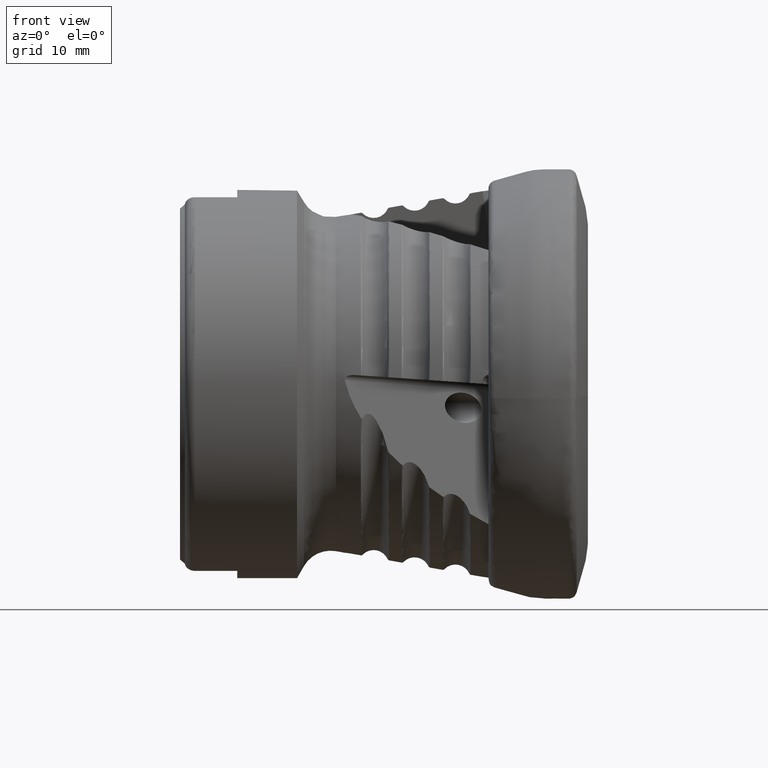
[diagram: clean part render]
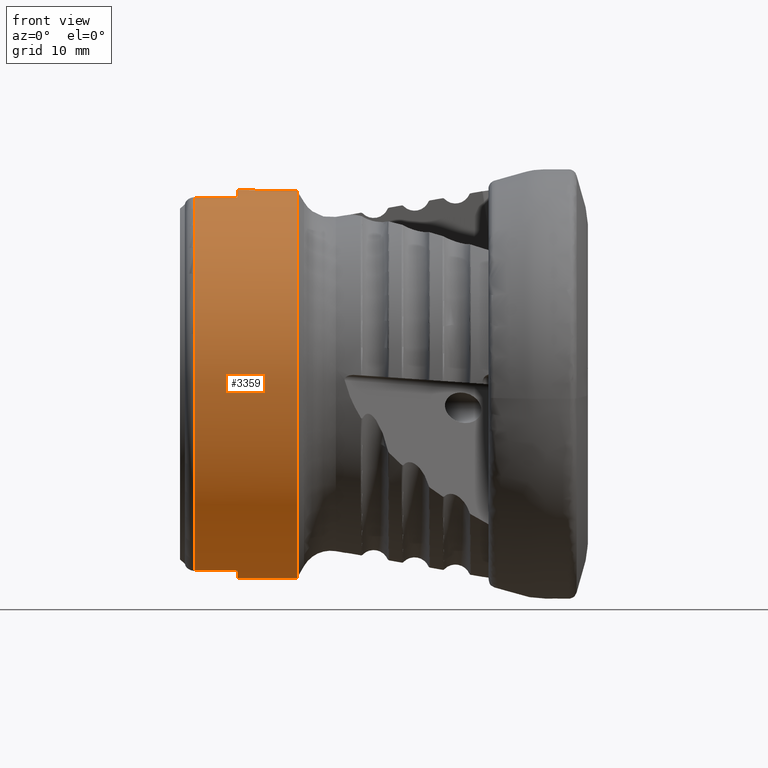
[diagram: same view with one face highlighted and labeled with its STEP entity id]
A machine part, front view. The second image highlights one B-rep face of the part: STEP entity #3359.
In plain terms, the highlighted cylindrical surface (bore or boss wall) has radius 19 mm, axis along (1, -0, -0).
Its self-contained STEP definition (entity closure, byte-faithful):
#63 = VERTEX_POINT ( 'NONE', #7376 ) ;
#117 = EDGE_CURVE ( 'NONE', #3732, #5820, #3163, .T. ) ;
#226 = EDGE_CURVE ( 'NONE', #1237, #1237, #4421, .T. ) ;
#267 = CARTESIAN_POINT ( 'NONE',  ( -37.54999999999999000, 0.0000000000000000000, 0.0000000000000000000 ) ) ;
#376 = LINE ( 'NONE', #5171, #3516 ) ;
#470 = AXIS2_PLACEMENT_3D ( 'NONE', #6910, #3165, #3791 ) ;
#570 = DIRECTION ( 'NONE',  ( -1.000000000000000000, -0.0000000000000000000, -0.0000000000000000000 ) ) ;
#673 = CIRCLE ( 'NONE', #7868, 18.99999999999999300 ) ;
#901 = DIRECTION ( 'NONE',  ( 0.0000000000000000000, 0.0000000000000000000, -1.000000000000000000 ) ) ;
#960 = CYLINDRICAL_SURFACE ( 'NONE', #3803, 18.99999999999999600 ) ;
#1229 = CARTESIAN_POINT ( 'NONE',  ( 0.0000000000000000000, 0.0000000000000000000, 0.0000000000000000000 ) ) ;
#1237 = VERTEX_POINT ( 'NONE', #3367 ) ;
#1344 = CIRCLE ( 'NONE', #3477, 18.99999999999999600 ) ;
#1454 = CARTESIAN_POINT ( 'NONE',  ( -5.378919146933868600E-030, 5.154084291463715500, -18.28757543023368400 ) ) ;
#1636 = LINE ( 'NONE', #1454, #3292 ) ;
#1642 = CARTESIAN_POINT ( 'NONE',  ( -33.39999999999999900, 5.154084291463728800, -18.28757543023368400 ) ) ;
#1657 = CARTESIAN_POINT ( 'NONE',  ( -37.54999999999999000, 5.154084291463728800, -18.28757543023368000 ) ) ;
#1814 = DIRECTION ( 'NONE',  ( -1.000000000000000000, -0.0000000000000000000, -0.0000000000000000000 ) ) ;
#1851 = ORIENTED_EDGE ( 'NONE', *, *, #117, .F. ) ;
#1939 = CIRCLE ( 'NONE', #3160, 18.99999999999999300 ) ;
#1979 = CARTESIAN_POINT ( 'NONE',  ( -4.706554253567135900E-030, -5.154084291463723500, -18.28757543023368400 ) ) ;
#2099 = ORIENTED_EDGE ( 'NONE', *, *, #8072, .T. ) ;
#2118 = CARTESIAN_POINT ( 'NONE',  ( -33.39999999999999900, -5.154084291463735900, -18.28757543023368400 ) ) ;
#2144 = CARTESIAN_POINT ( 'NONE',  ( -37.54999999999999000, 0.0000000000000000000, 0.0000000000000000000 ) ) ;
#2278 = ORIENTED_EDGE ( 'NONE', *, *, #7966, .T. ) ;
#2491 = DIRECTION ( 'NONE',  ( 0.0000000000000000000, 0.0000000000000000000, -1.000000000000000000 ) ) ;
#2631 = FACE_OUTER_BOUND ( 'NONE', #3587, .T. ) ;
#2716 = VECTOR ( 'NONE', #6848, 1000.000000000000000 ) ;
#2777 = DIRECTION ( 'NONE',  ( 0.0000000000000000000, 0.0000000000000000000, -1.000000000000000000 ) ) ;
#2859 = CARTESIAN_POINT ( 'NONE',  ( -37.54999999999999000, 5.154084291463730600, 18.28757543023368000 ) ) ;
#2973 = EDGE_CURVE ( 'NONE', #4934, #3805, #673, .T. ) ;
#3100 = CARTESIAN_POINT ( 'NONE',  ( -5.378919146933869300E-030, -5.154084291463721700, 18.28757543023368400 ) ) ;
#3160 = AXIS2_PLACEMENT_3D ( 'NONE', #267, #4648, #901 ) ;
#3163 = CIRCLE ( 'NONE', #6078, 18.99999999999999600 ) ;
#3165 = DIRECTION ( 'NONE',  ( 1.000000000000000000, -0.0000000000000000000, -0.0000000000000000000 ) ) ;
#3227 = DIRECTION ( 'NONE',  ( 1.000000000000000000, -0.0000000000000000000, -0.0000000000000000000 ) ) ;
#3292 = VECTOR ( 'NONE', #5190, 1000.000000000000000 ) ;
#3359 = ADVANCED_FACE ( 'Fl�che8', ( #4289, #2631 ), #960, .T. ) ;
#3367 = CARTESIAN_POINT ( 'NONE',  ( -27.54999999999999700, 0.0000000000000000000, -18.99999999999999600 ) ) ;
#3411 = ORIENTED_EDGE ( 'NONE', *, *, #226, .F. ) ;
#3477 = AXIS2_PLACEMENT_3D ( 'NONE', #5544, #1814, #6175 ) ;
#3516 = VECTOR ( 'NONE', #4537, 1000.000000000000000 ) ;
#3587 = EDGE_LOOP ( 'NONE', ( #3411 ) ) ;
#3732 = VERTEX_POINT ( 'NONE', #1642 ) ;
#3791 = DIRECTION ( 'NONE',  ( 0.0000000000000000000, 0.0000000000000000000, -1.000000000000000000 ) ) ;
#3803 = AXIS2_PLACEMENT_3D ( 'NONE', #1229, #7447, #2491 ) ;
#3805 = VERTEX_POINT ( 'NONE', #6090 ) ;
#4289 = FACE_OUTER_BOUND ( 'NONE', #7082, .T. ) ;
#4310 = CARTESIAN_POINT ( 'NONE',  ( -33.39999999999999900, 0.0000000000000000000, 0.0000000000000000000 ) ) ;
#4330 = ORIENTED_EDGE ( 'NONE', *, *, #4966, .T. ) ;
#4421 = CIRCLE ( 'NONE', #470, 18.99999999999999600 ) ;
#4441 = ORIENTED_EDGE ( 'NONE', *, *, #7522, .T. ) ;
#4537 = DIRECTION ( 'NONE',  ( 1.000000000000000000, -0.0000000000000000000, -0.0000000000000000000 ) ) ;
#4600 = ORIENTED_EDGE ( 'NONE', *, *, #6622, .F. ) ;
#4648 = DIRECTION ( 'NONE',  ( 1.000000000000000000, -0.0000000000000000000, -0.0000000000000000000 ) ) ;
#4934 = VERTEX_POINT ( 'NONE', #5725 ) ;
#4940 = DIRECTION ( 'NONE',  ( 0.0000000000000000000, 0.0000000000000000000, -1.000000000000000000 ) ) ;
#4966 = EDGE_CURVE ( 'NONE', #7662, #5918, #376, .T. ) ;
#5171 = CARTESIAN_POINT ( 'NONE',  ( -4.706554253567135200E-030, 5.154084291463717300, 18.28757543023368400 ) ) ;
#5190 = DIRECTION ( 'NONE',  ( -1.000000000000000000, 0.0000000000000000000, 0.0000000000000000000 ) ) ;
#5544 = CARTESIAN_POINT ( 'NONE',  ( -33.39999999999999900, 0.0000000000000000000, 0.0000000000000000000 ) ) ;
#5725 = CARTESIAN_POINT ( 'NONE',  ( -37.54999999999999000, -5.154084291463731500, 18.28757543023368400 ) ) ;
#5820 = VERTEX_POINT ( 'NONE', #2118 ) ;
#5914 = VERTEX_POINT ( 'NONE', #1657 ) ;
#5918 = VERTEX_POINT ( 'NONE', #6024 ) ;
#6024 = CARTESIAN_POINT ( 'NONE',  ( -33.39999999999999900, 5.154084291463730600, 18.28757543023368400 ) ) ;
#6078 = AXIS2_PLACEMENT_3D ( 'NONE', #4310, #570, #4940 ) ;
#6090 = CARTESIAN_POINT ( 'NONE',  ( -37.54999999999999000, -5.154084291463735900, -18.28757543023368000 ) ) ;
#6175 = DIRECTION ( 'NONE',  ( 0.0000000000000000000, 2.664535259100375700E-015, -1.000000000000000000 ) ) ;
#6505 = DIRECTION ( 'NONE',  ( 1.000000000000000000, -0.0000000000000000000, -0.0000000000000000000 ) ) ;
#6622 = EDGE_CURVE ( 'NONE', #63, #5918, #1344, .T. ) ;
#6793 = ORIENTED_EDGE ( 'NONE', *, *, #2973, .T. ) ;
#6814 = VECTOR ( 'NONE', #3227, 1000.000000000000000 ) ;
#6848 = DIRECTION ( 'NONE',  ( -1.000000000000000000, 0.0000000000000000000, 0.0000000000000000000 ) ) ;
#6910 = CARTESIAN_POINT ( 'NONE',  ( -27.54999999999999700, 0.0000000000000000000, 0.0000000000000000000 ) ) ;
#7082 = EDGE_LOOP ( 'NONE', ( #4441, #4330, #4600, #7102, #6793, #2278, #1851, #2099 ) ) ;
#7102 = ORIENTED_EDGE ( 'NONE', *, *, #7304, .T. ) ;
#7203 = LINE ( 'NONE', #1979, #6814 ) ;
#7304 = EDGE_CURVE ( 'NONE', #63, #4934, #7680, .T. ) ;
#7376 = CARTESIAN_POINT ( 'NONE',  ( -33.39999999999999900, -5.154084291463734100, 18.28757543023368400 ) ) ;
#7447 = DIRECTION ( 'NONE',  ( 1.000000000000000000, -0.0000000000000000000, -0.0000000000000000000 ) ) ;
#7522 = EDGE_CURVE ( 'NONE', #5914, #7662, #1939, .T. ) ;
#7662 = VERTEX_POINT ( 'NONE', #2859 ) ;
#7680 = LINE ( 'NONE', #3100, #2716 ) ;
#7868 = AXIS2_PLACEMENT_3D ( 'NONE', #2144, #6505, #2777 ) ;
#7966 = EDGE_CURVE ( 'NONE', #3805, #5820, #7203, .T. ) ;
#8072 = EDGE_CURVE ( 'NONE', #3732, #5914, #1636, .T. ) ;